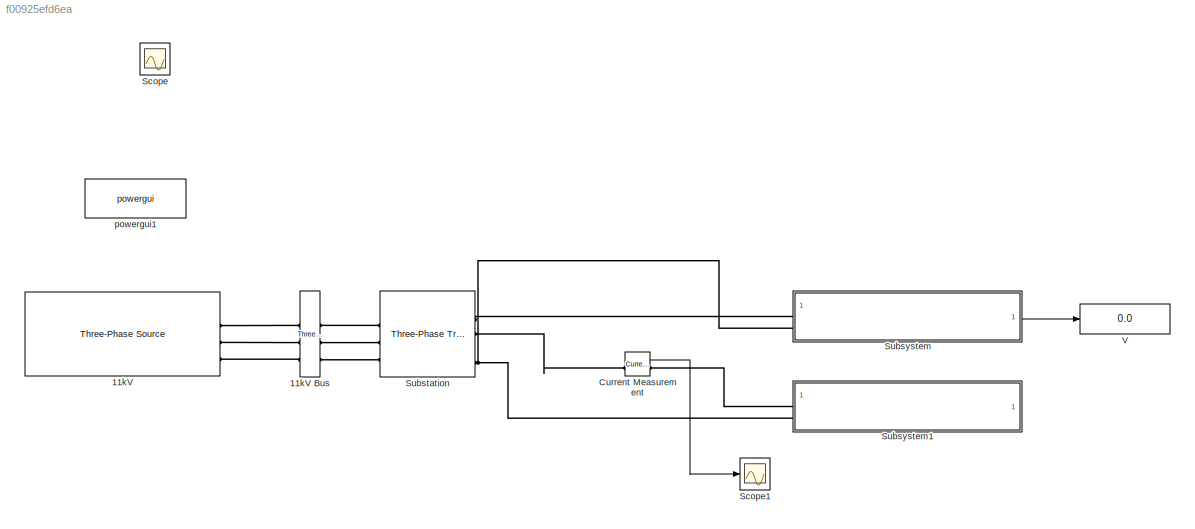
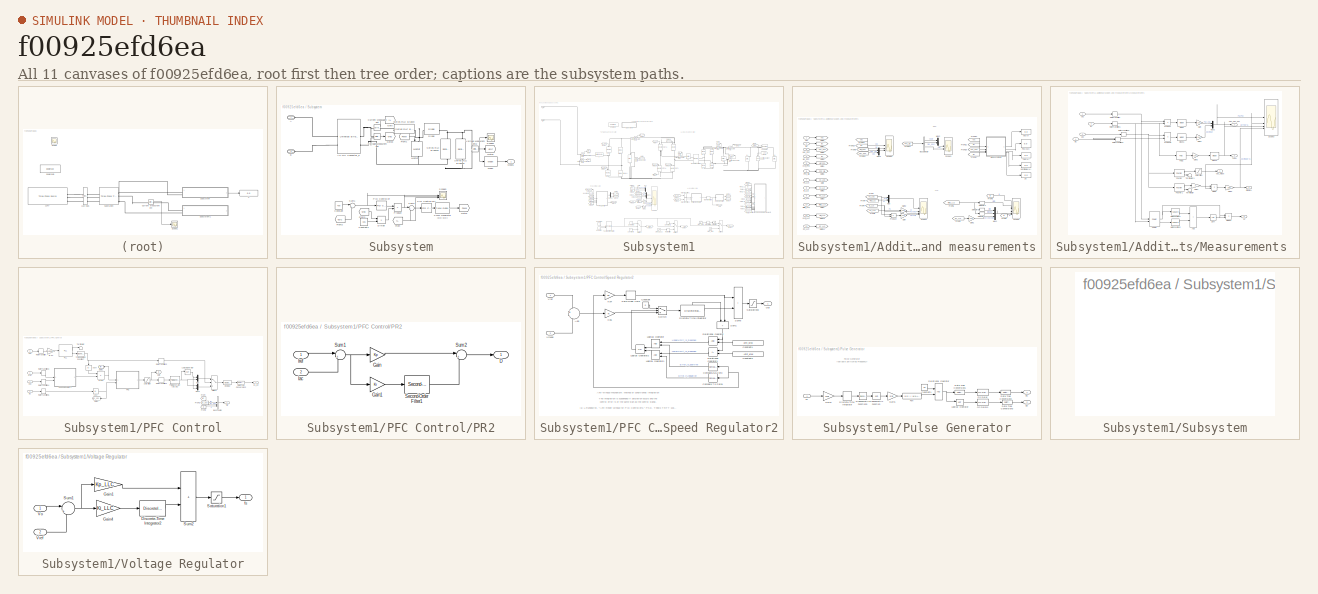
[diagram: thumbnail index - all 11 canvases of the model, root first then tree order]
MODEL slx_f00925efd6ea
KIND model
CONFIG AbsTol = auto
CONFIG EnableMultiTasking = off
CONFIG FixedStep = auto
CONFIG MaxStep = auto
CONFIG MinStep = auto
CONFIG RelTol = 1e-3
CONFIG SampleTimeConstraint = Unconstrained
CONFIG SolverName = VariableStepAuto
CONFIG StartTime = 0.0
CONFIG StopTime = 10.0
BLOCK [Reference] 11kV  REF=spsThreePhaseSourceLib/Three-Phase Source
  LibrarySourceBlock = sps_lib/Sources/Three-Phase Source
  SourceBlock = spsThreePhaseSourceLib/Three-Phase Source
  SourceType = Three-Phase Source
BLOCK [Reference] 11kV Bus  REF=spsThreePhaseVIMeasurementLib/Three-Phase
V-I Measurement
  LibrarySourceBlock = sps_lib/Sensors and Measurements/Three-Phase\nV-I Measurement
  SourceBlock = spsThreePhaseVIMeasurementLib/Three-Phase\nV-I Measurement
  SourceType = Three-Phase VI Measurement
BLOCK [Reference] Current Measurement  REF=spsCurrentMeasurementLib/Current Measurement
  LibrarySourceBlock = sps_lib/Sensors and Measurements/Current Measurement
  SourceBlock = spsCurrentMeasurementLib/Current Measurement
  SourceType = Current Measurement
  UserDataPersistent = on
BLOCK [Scope] Scope
  Floating = off
  IOType = viewer
  NumInputPorts = 1
  ScopeSpecificationString = Simulink.scopes.TimeScopeBlockCfg('CurrentConfiguration', extmgr.ConfigurationSet(extmgr.Configuration('Core','General UI',true),extmgr.Configuration('Core','Source UI',true),extmgr.Configuration('Sources','WiredSimulink',true,'DataLoggingVariableName','ScopeData1'),extmgr.Configuration('Visuals','Time Domain',true,'SerializedDisplays',{struct('MinYLimReal','-10.00000','MaxYLimReal','10.00000','YL...<+1522ch>
BLOCK [Scope] Scope1
  Floating = off
  NumInputPorts = 1
  ScopeSpecificationString = Simulink.scopes.TimeScopeBlockCfg('CurrentConfiguration', extmgr.ConfigurationSet(extmgr.Configuration('Core','General UI',true),extmgr.Configuration('Core','Source UI',true),extmgr.Configuration('Sources','WiredSimulink',true,'DataLoggingVariableName','ScopeData3'),extmgr.Configuration('Visuals','Time Domain',true,'SerializedDisplays',{struct('MinYLimReal','-1743.69071','MaxYLimReal','1470.84647'...<+1572ch>
BLOCK [Reference] Substation  REF=spsThreePhaseTransformerTwoWindingsLib/Three-Phase
Transformer
(Two Windings)
  LibrarySourceBlock = sps_lib/Power Grid Elements/Three-Phase\nTransformer\n(Two Windings)
  SourceBlock = spsThreePhaseTransformerTwoWindingsLib/Three-Phase\nTransformer\n(Two Windings)
  SourceType = Three-Phase Transformer (Two Windings)
BLOCK [SubSystem] Subsystem
BLOCK [PMIOPort] Subsystem/A
  Side = Left
BLOCK [Reference] Subsystem/AC-DC Converter_a  REF=spsUniversalBridgeLib/Universal Bridge
  SourceBlock = spsUniversalBridgeLib/Universal Bridge
  SourceType = Universal Bridge
BLOCK [PMIOPort] Subsystem/B
  Port = 2
  Side = Left
BLOCK [Constant] Subsystem/Constant
  Value = 400
BLOCK [Constant] Subsystem/Constant1
  Value = 325
BLOCK [Reference] Subsystem/Current Measurement  REF=spsCurrentMeasurementLib/Current Measurement
  SourceBlock = spsCurrentMeasurementLib/Current Measurement
  SourceType = Current Measurement
  UserDataPersistent = on
BLOCK [Reference] Subsystem/Diode  REF=spsDiodeLib/Diode
  SourceBlock = spsDiodeLib/Diode
  SourceType = Diode
BLOCK [Product] Subsystem/Divide
  Inputs = */
BLOCK [From] Subsystem/From
  GotoTag = iL
BLOCK [From] Subsystem/From1
  GotoTag = PWM
BLOCK [From] Subsystem/From2
  GotoTag = VDC
BLOCK [From] Subsystem/From3
  GotoTag = Vrec
BLOCK [Goto] Subsystem/Goto
  GotoTag = iL
BLOCK [Goto] Subsystem/Goto1
  GotoTag = PWM
BLOCK [Goto] Subsystem/Goto2
  GotoTag = VDC
BLOCK [Goto] Subsystem/Goto3
  GotoTag = Vrec
BLOCK [Reference] Subsystem/Mean  REF=spsMeanLib/Mean
  SourceBlock = spsMeanLib/Mean
  SourceType = Mean
BLOCK [Outport] Subsystem/Mean1
BLOCK [Reference] Subsystem/Mosfet  REF=spsMosfetLib/Mosfet
  NameLocation = left
  SourceBlock = spsMosfetLib/Mosfet
  SourceType = Mosfet
BLOCK [Reference] Subsystem/PID Controller  REF=slpidlib/PID Controller
  SourceBlock = slpidlib/PID Controller
  SourceType = PID 1dof
BLOCK [Reference] Subsystem/PID Controller1  REF=slpidlib/PID Controller
  SourceBlock = slpidlib/PID Controller
  SourceType = PID 1dof
BLOCK [Reference] Subsystem/PWM Generator (DC-DC)  REF=spsPWMGeneratorDCDCLib/PWM Generator
(DC-DC)
  SourceBlock = spsPWMGeneratorDCDCLib/PWM Generator\n(DC-DC)
  SourceType = PWM Generator (DC-DC)
BLOCK [Product] Subsystem/Product
BLOCK [Scope] Subsystem/Scope1
  Floating = off
  NumInputPorts = 1
  ScopeSpecificationString = Simulink.scopes.TimeScopeBlockCfg('CurrentConfiguration', extmgr.ConfigurationSet(extmgr.Configuration('Core','General UI',true),extmgr.Configuration('Core','Source UI',true),extmgr.Configuration('Sources','WiredSimulink',true,'DataLoggingVariableName','ScopeData1'),extmgr.Configuration('Visuals','Time Domain',true,'SerializedDisplays',{struct('MinYLimReal','-118.78055','MaxYLimReal','1069.02497',...<+1444ch>
BLOCK [Scope] Subsystem/Scope3
  Floating = off
  NumInputPorts = 3
  ScopeSpecificationString = Simulink.scopes.TimeScopeBlockCfg('CurrentConfiguration', extmgr.ConfigurationSet(extmgr.Configuration('Core','General UI',true),extmgr.Configuration('Core','Source UI',true),extmgr.Configuration('Sources','WiredSimulink',true,'DataLoggingVariableName','ScopeData3'),extmgr.Configuration('Visuals','Time Domain',true,'SerializedDisplays',{struct('MinYLimReal','-209.39497','MaxYLimReal','467.71055','...<+2793ch>
BLOCK [Reference] Subsystem/Series RLC Branch  REF=spsSeriesRLCBranchLib/Series RLC Branch
  SourceBlock = spsSeriesRLCBranchLib/Series RLC Branch
  SourceType = Series RLC Branch
BLOCK [Reference] Subsystem/Series RLC Branch1  REF=spsSeriesRLCBranchLib/Series RLC Branch
  NameLocation = left
  SourceBlock = spsSeriesRLCBranchLib/Series RLC Branch
  SourceType = Series RLC Branch
BLOCK [Reference] Subsystem/Series RLC Branch2  REF=spsSeriesRLCBranchLib/Series RLC Branch
  NameLocation = left
  SourceBlock = spsSeriesRLCBranchLib/Series RLC Branch
  SourceType = Series RLC Branch
BLOCK [Sum] Subsystem/Sum1
  Inputs = |+-
BLOCK [Sum] Subsystem/Sum2
  Inputs = |+-
BLOCK [Reference] Subsystem/Voltage Measurement  REF=spsVoltageMeasurementLib/Voltage Measurement
  SourceBlock = spsVoltageMeasurementLib/Voltage Measurement
  SourceType = Voltage Measurement
  UserDataPersistent = on
BLOCK [Reference] Subsystem/Voltage Measurement2  REF=spsVoltageMeasurementLib/Voltage Measurement
  SourceBlock = spsVoltageMeasurementLib/Voltage Measurement
  SourceType = Voltage Measurement
  UserDataPersistent = on
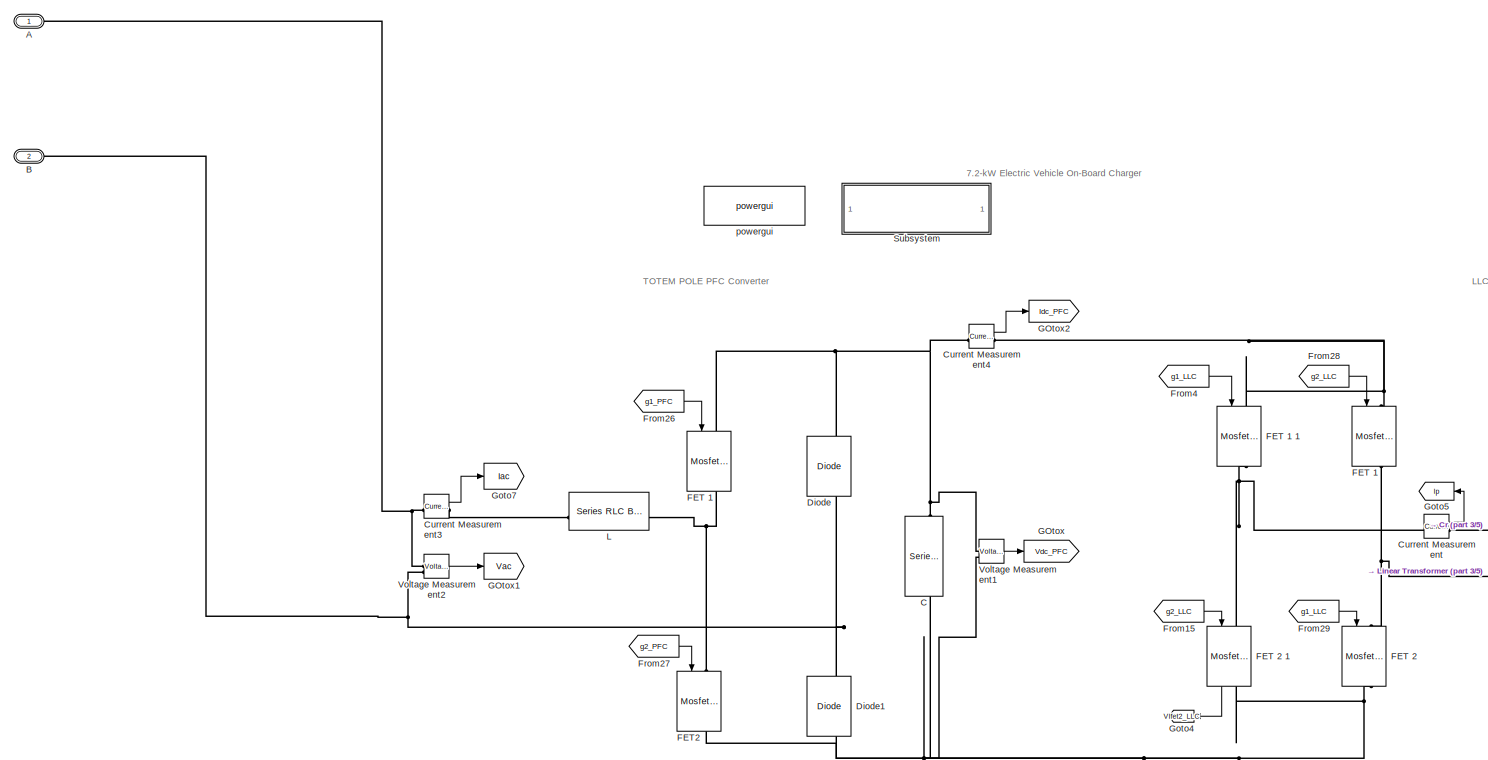
[diagram: Subsystem1 - part 1/5, top left region]
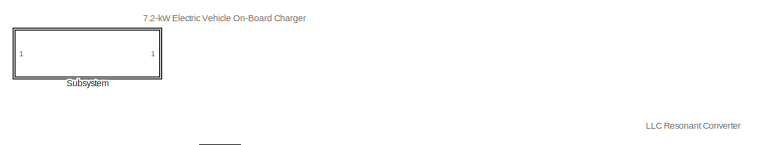
[diagram: Subsystem1 - part 2/5, top center region]
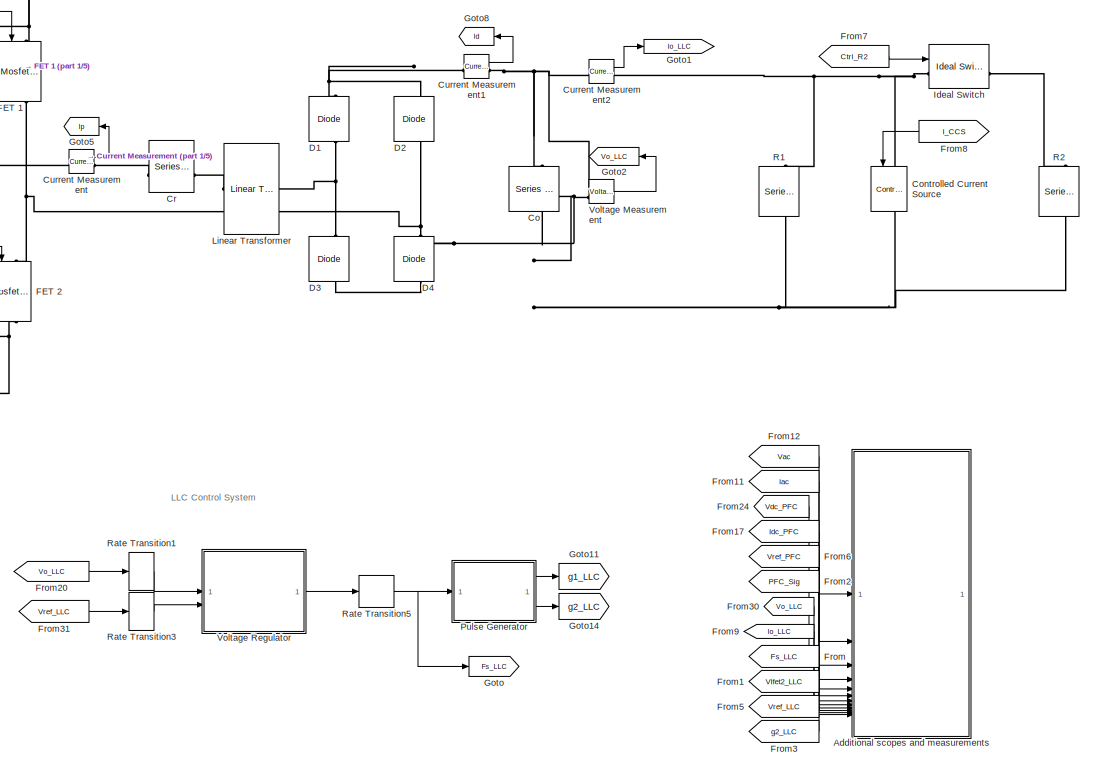
[diagram: Subsystem1 - part 3/5, middle right region]
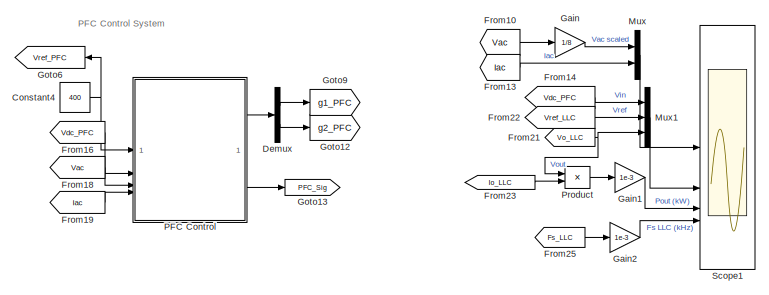
[diagram: Subsystem1 - part 4/5, bottom center region]
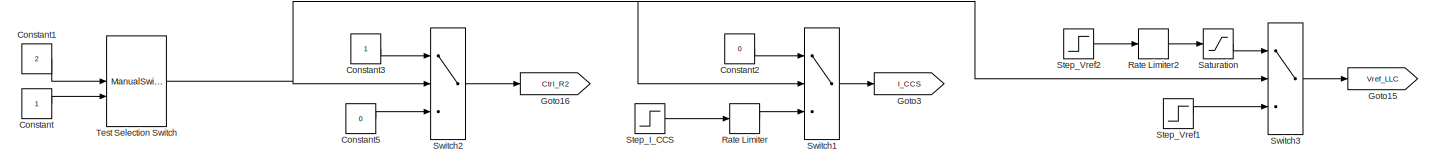
[diagram: Subsystem1 - part 5/5, bottom center region]
BLOCK [SubSystem] Subsystem1
BLOCK [PMIOPort] Subsystem1/A
  Side = Left
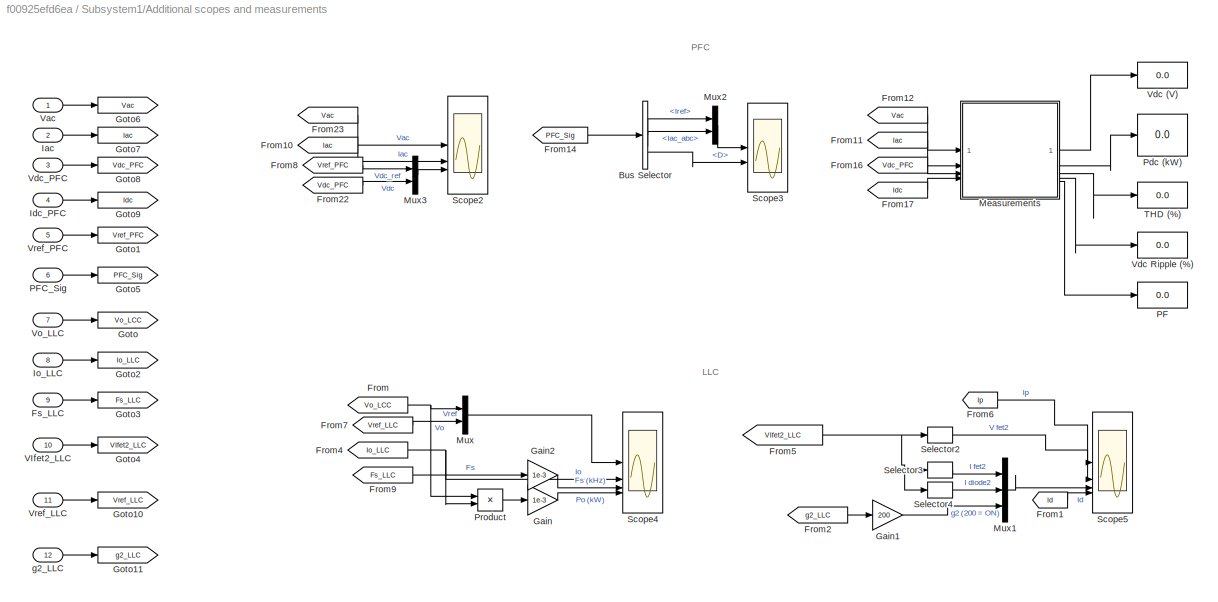
BLOCK [SubSystem] Subsystem1/Additional scopes and measurements
BLOCK [BusSelector] Subsystem1/Additional scopes and measurements/Bus Selector
  OutputSignals = Iref,Iac_abc,D
BLOCK [From] Subsystem1/Additional scopes and measurements/From
  GotoTag = Vo_LCC
BLOCK [From] Subsystem1/Additional scopes and measurements/From1
  GotoTag = Id
  TagVisibility = global
BLOCK [From] Subsystem1/Additional scopes and measurements/From10
  GotoTag = Iac
BLOCK [From] Subsystem1/Additional scopes and measurements/From11
  GotoTag = Iac
BLOCK [From] Subsystem1/Additional scopes and measurements/From12
  GotoTag = Vac
BLOCK [From] Subsystem1/Additional scopes and measurements/From14
  GotoTag = PFC_Sig
BLOCK [From] Subsystem1/Additional scopes and measurements/From16
  GotoTag = Vdc_PFC
BLOCK [From] Subsystem1/Additional scopes and measurements/From17
  GotoTag = Idc
BLOCK [From] Subsystem1/Additional scopes and measurements/From2
  GotoTag = g2_LLC
BLOCK [From] Subsystem1/Additional scopes and measurements/From22
  GotoTag = Vdc_PFC
BLOCK [From] Subsystem1/Additional scopes and measurements/From23
  GotoTag = Vac
BLOCK [From] Subsystem1/Additional scopes and measurements/From4
  GotoTag = Io_LLC
BLOCK [From] Subsystem1/Additional scopes and measurements/From5
  GotoTag = VIfet2_LLC
BLOCK [From] Subsystem1/Additional scopes and measurements/From6
  GotoTag = Ip
  TagVisibility = global
BLOCK [From] Subsystem1/Additional scopes and measurements/From7
  GotoTag = Vref_LLC
BLOCK [From] Subsystem1/Additional scopes and measurements/From8
  GotoTag = Vref_PFC
BLOCK [From] Subsystem1/Additional scopes and measurements/From9
  GotoTag = Fs_LLC
BLOCK [Inport] Subsystem1/Additional scopes and measurements/Fs_LLC
  Port = 9
BLOCK [Gain] Subsystem1/Additional scopes and measurements/Gain
  Gain = 1e-3
BLOCK [Gain] Subsystem1/Additional scopes and measurements/Gain1
  Gain = 200
BLOCK [Gain] Subsystem1/Additional scopes and measurements/Gain2
  Gain = 1e-3
BLOCK [Goto] Subsystem1/Additional scopes and measurements/Goto
  GotoTag = Vo_LCC
BLOCK [Goto] Subsystem1/Additional scopes and measurements/Goto1
  GotoTag = Vref_PFC
BLOCK [Goto] Subsystem1/Additional scopes and measurements/Goto10
  GotoTag = Vref_LLC
BLOCK [Goto] Subsystem1/Additional scopes and measurements/Goto11
  GotoTag = g2_LLC
BLOCK [Goto] Subsystem1/Additional scopes and measurements/Goto2
  GotoTag = Io_LLC
BLOCK [Goto] Subsystem1/Additional scopes and measurements/Goto3
  GotoTag = Fs_LLC
BLOCK [Goto] Subsystem1/Additional scopes and measurements/Goto4
  GotoTag = VIfet2_LLC
BLOCK [Goto] Subsystem1/Additional scopes and measurements/Goto5
  GotoTag = PFC_Sig
BLOCK [Goto] Subsystem1/Additional scopes and measurements/Goto6
  GotoTag = Vac
BLOCK [Goto] Subsystem1/Additional scopes and measurements/Goto7
  GotoTag = Iac
BLOCK [Goto] Subsystem1/Additional scopes and measurements/Goto8
  GotoTag = Vdc_PFC
BLOCK [Goto] Subsystem1/Additional scopes and measurements/Goto9
  GotoTag = Idc
BLOCK [Inport] Subsystem1/Additional scopes and measurements/Iac
  Port = 2
BLOCK [Inport] Subsystem1/Additional scopes and measurements/Idc_PFC
  Port = 4
BLOCK [Inport] Subsystem1/Additional scopes and measurements/Io_LLC
  Port = 8
BLOCK [SubSystem] Subsystem1/Additional scopes and measurements/Measurements 
BLOCK [Sum] Subsystem1/Additional scopes and measurements/Measurements /Add
  IconShape = rectangular
BLOCK [Product] Subsystem1/Additional scopes and measurements/Measurements /Divide
  Inputs = */
BLOCK [Product] Subsystem1/Additional scopes and measurements/Measurements /Divide2
  Inputs = */
BLOCK [Reference] Subsystem1/Additional scopes and measurements/Measurements /Fourier  REF=spsFourierLib/Fourier
  SourceBlock = spsFourierLib/Fourier
  SourceType = Fourier
BLOCK [Reference] Subsystem1/Additional scopes and measurements/Measurements /Fourier1  REF=spsFourierLib/Fourier
  SourceBlock = spsFourierLib/Fourier
  SourceType = Fourier
BLOCK [Gain] Subsystem1/Additional scopes and measurements/Measurements /Gain
  Gain = 1e-3
BLOCK [Gain] Subsystem1/Additional scopes and measurements/Measurements /Gain1
  Gain = 1e-3
BLOCK [Gain] Subsystem1/Additional scopes and measurements/Measurements /Gain2
  Gain = 100
BLOCK [Gain] Subsystem1/Additional scopes and measurements/Measurements /Gain3
  Gain = 100
BLOCK [Gain] Subsystem1/Additional scopes and measurements/Measurements /Gain4
  Gain = 2
BLOCK [Inport] Subsystem1/Additional scopes and measurements/Measurements /Iac
  Port = 2
BLOCK [Inport] Subsystem1/Additional scopes and measurements/Measurements /Idc
  Port = 4
BLOCK [Math] Subsystem1/Additional scopes and measurements/Measurements /Math Function1
  Operator = square
BLOCK [Math] Subsystem1/Additional scopes and measurements/Measurements /Math Function2
  Operator = square
BLOCK [Reference] Subsystem1/Additional scopes and measurements/Measurements /Mean  REF=spsMeanLib/Mean
  SourceBlock = spsMeanLib/Mean
  SourceType = Mean
BLOCK [Reference] Subsystem1/Additional scopes and measurements/Measurements /Mean1  REF=spsMeanLib/Mean
  SourceBlock = spsMeanLib/Mean
  SourceType = Mean
BLOCK [Reference] Subsystem1/Additional scopes and measurements/Measurements /Mean2  REF=spsMeanLib/Mean
  SourceBlock = spsMeanLib/Mean
  SourceType = Mean
BLOCK [Mux] Subsystem1/Additional scopes and measurements/Measurements /Mux2
  DisplayOption = bar
  Inputs = 2
BLOCK [Outport] Subsystem1/Additional scopes and measurements/Measurements /PF
  Port = 5
BLOCK [Outport] Subsystem1/Additional scopes and measurements/Measurements /Pac_Pdc_kW
  Port = 2
BLOCK [Reference] Subsystem1/Additional scopes and measurements/Measurements /Power  REF=spsPowerLib/Power
  SourceBlock = spsPowerLib/Power
  SourceType = Power
BLOCK [Product] Subsystem1/Additional scopes and measurements/Measurements /Product
BLOCK [Product] Subsystem1/Additional scopes and measurements/Measurements /Product1
BLOCK [RateTransition] Subsystem1/Additional scopes and measurements/Measurements /Rate Transition
  OutPortSampleTime = Ts_Control
BLOCK [RateTransition] Subsystem1/Additional scopes and measurements/Measurements /Rate Transition1
  OutPortSampleTime = Ts_Control
BLOCK [RateTransition] Subsystem1/Additional scopes and measurements/Measurements /Rate Transition2
  OutPortSampleTime = Ts_Control
BLOCK [RateTransition] Subsystem1/Additional scopes and measurements/Measurements /Rate Transition3
  OutPortSampleTime = Ts_Control
BLOCK [Outport] Subsystem1/Additional scopes and measurements/Measurements /Ripple%
  Port = 4
BLOCK [Saturate] Subsystem1/Additional scopes and measurements/Measurements /Saturation
  LowerLimit = eps
  UpperLimit = inf
BLOCK [Scope] Subsystem1/Additional scopes and measurements/Measurements /Scope3
  Floating = off
  NumInputPorts = 4
  ScopeSpecificationString = Simulink.scopes.TimeScopeBlockCfg('CurrentConfiguration', extmgr.ConfigurationSet(extmgr.Configuration('Core','General UI',true),extmgr.Configuration('Core','Source UI',true),extmgr.Configuration('Sources','WiredSimulink',true,'DataLoggingVariableName','ScopeData1'),extmgr.Configuration('Visuals','Time Domain',true,'SerializedDisplays',{struct('MinYLimReal','-1.32447','MaxYLimReal','11.92024','YLa...<+3480ch>
BLOCK [Sqrt] Subsystem1/Additional scopes and measurements/Measurements /Sqrt
BLOCK [Outport] Subsystem1/Additional scopes and measurements/Measurements /THD%
  Port = 3
BLOCK [Reference] Subsystem1/Additional scopes and measurements/Measurements /THD2  REF=spsTHDLib/THD
  SourceBlock = spsTHDLib/THD
  SourceType = THD
BLOCK [Terminator] Subsystem1/Additional scopes and measurements/Measurements /Terminator
BLOCK [Terminator] Subsystem1/Additional scopes and measurements/Measurements /Terminator1
BLOCK [Inport] Subsystem1/Additional scopes and measurements/Measurements /Vac
BLOCK [Inport] Subsystem1/Additional scopes and measurements/Measurements /Vdc
  Port = 3
BLOCK [Outport] Subsystem1/Additional scopes and measurements/Measurements /Vdc_mean
BLOCK [Mux] Subsystem1/Additional scopes and measurements/Mux
  DisplayOption = bar
  Inputs = 2
BLOCK [Mux] Subsystem1/Additional scopes and measurements/Mux1
  DisplayOption = bar
  Inputs = 3
BLOCK [Mux] Subsystem1/Additional scopes and measurements/Mux2
  DisplayOption = bar
  Inputs = 2
BLOCK [Mux] Subsystem1/Additional scopes and measurements/Mux3
  DisplayOption = bar
  Inputs = 2
BLOCK [Display] Subsystem1/Additional scopes and measurements/PF
  Decimation = 100
  Format = bank
BLOCK [Inport] Subsystem1/Additional scopes and measurements/PFC_Sig
  Port = 6
BLOCK [Display] Subsystem1/Additional scopes and measurements/Pdc (kW) 
  Decimation = 100
  Format = bank
BLOCK [Product] Subsystem1/Additional scopes and measurements/Product
BLOCK [Scope] Subsystem1/Additional scopes and measurements/Scope2
  Floating = off
  NumInputPorts = 3
  ScopeSpecificationString = Simulink.scopes.TimeScopeBlockCfg('CurrentConfiguration', extmgr.ConfigurationSet(extmgr.Configuration('Core','General UI',true),extmgr.Configuration('Core','Source UI',true),extmgr.Configuration('Sources','WiredSimulink',true,'DataLoggingVariableName','ScopeData1'),extmgr.Configuration('Visuals','Time Domain',true,'SerializedDisplays',{struct('MinYLimReal','-424.26407','MaxYLimReal','424.26407','...<+2773ch>
BLOCK [Scope] Subsystem1/Additional scopes and measurements/Scope3
  Floating = off
  NumInputPorts = 2
  ScopeSpecificationString = Simulink.scopes.TimeScopeBlockCfg('CurrentConfiguration', extmgr.ConfigurationSet(extmgr.Configuration('Core','General UI',true),extmgr.Configuration('Core','Source UI',true),extmgr.Configuration('Sources','WiredSimulink',true,'DataLoggingVariableName','ScopeData2'),extmgr.Configuration('Visuals','Time Domain',true,'SerializedDisplays',{struct('MinYLimReal','-9.06391','MaxYLimReal','81.57518','YLa...<+2057ch>
BLOCK [Scope] Subsystem1/Additional scopes and measurements/Scope4
  Floating = off
  NumInputPorts = 4
  ScopeSpecificationString = Simulink.scopes.TimeScopeBlockCfg('CurrentConfiguration', extmgr.ConfigurationSet(extmgr.Configuration('Core','General UI',true),extmgr.Configuration('Core','Source UI',true),extmgr.Configuration('Sources','WiredSimulink',true,'DataLoggingVariableName','ScopeData2','DataLoggingDecimation','10'),extmgr.Configuration('Visuals','Time Domain',true,'SerializedDisplays',{struct('MinYLimReal','338.12925'...<+3546ch>
BLOCK [Scope] Subsystem1/Additional scopes and measurements/Scope5
  Floating = off
  NumInputPorts = 4
  ScopeSpecificationString = Simulink.scopes.TimeScopeBlockCfg('CurrentConfiguration', extmgr.ConfigurationSet(extmgr.Configuration('Core','General UI',true),extmgr.Configuration('Core','Source UI',true),extmgr.Configuration('Sources','WiredSimulink',true,'DataLoggingVariableName','ScopeData1','DataLoggingDecimation','1','DataLoggingSaveFormat','StructureWithTime'),extmgr.Configuration('Visuals','Time Domain',true,'Serialized...<+3663ch>
BLOCK [Selector] Subsystem1/Additional scopes and measurements/Selector2
  IndexOptions = Index vector (dialog)
  Indices = 2
  InputPortWidth = 3
  OutputSizes = 1
BLOCK [Selector] Subsystem1/Additional scopes and measurements/Selector3
  IndexOptions = Index vector (dialog)
  Indices = 1
  InputPortWidth = 3
  OutputSizes = 1
BLOCK [Selector] Subsystem1/Additional scopes and measurements/Selector4
  IndexOptions = Index vector (dialog)
  Indices = 3
  InputPortWidth = 3
  OutputSizes = 1
BLOCK [Display] Subsystem1/Additional scopes and measurements/THD (%) 
  Decimation = 100
  Format = bank
BLOCK [Inport] Subsystem1/Additional scopes and measurements/VIfet2_LLC
  Port = 10
BLOCK [Inport] Subsystem1/Additional scopes and measurements/Vac
BLOCK [Display] Subsystem1/Additional scopes and measurements/Vdc (V) 
  Decimation = 100
  Format = bank
BLOCK [Display] Subsystem1/Additional scopes and measurements/Vdc Ripple (%)
  Decimation = 100
  Format = bank
BLOCK [Inport] Subsystem1/Additional scopes and measurements/Vdc_PFC
  Port = 3
BLOCK [Inport] Subsystem1/Additional scopes and measurements/Vo_LLC
  Port = 7
BLOCK [Inport] Subsystem1/Additional scopes and measurements/Vref_LLC
  Port = 11
BLOCK [Inport] Subsystem1/Additional scopes and measurements/Vref_PFC
  Port = 5
BLOCK [Inport] Subsystem1/Additional scopes and measurements/g2_LLC
  Port = 12
BLOCK [PMIOPort] Subsystem1/B
  Port = 2
  Side = Left
BLOCK [Reference] Subsystem1/C  REF=spsSeriesRLCBranchLib/Series RLC Branch
  NameLocation = left
  SourceBlock = spsSeriesRLCBranchLib/Series RLC Branch
  SourceType = Series RLC Branch
BLOCK [Reference] Subsystem1/Co  REF=spsSeriesRLCBranchLib/Series RLC Branch
  NameLocation = left
  SourceBlock = spsSeriesRLCBranchLib/Series RLC Branch
  SourceType = Series RLC Branch
BLOCK [Constant] Subsystem1/Constant
BLOCK [Constant] Subsystem1/Constant1
  Value = 2
BLOCK [Constant] Subsystem1/Constant2
  Value = 0
BLOCK [Constant] Subsystem1/Constant3
BLOCK [Constant] Subsystem1/Constant4
  Value = 400
BLOCK [Constant] Subsystem1/Constant5
  Value = 0
BLOCK [Reference] Subsystem1/Controlled Current Source  REF=spsControlledCurrentSourceLib/Controlled Current Source
  NameLocation = right
  SourceBlock = spsControlledCurrentSourceLib/Controlled Current Source
  SourceType = Controlled Current Source
BLOCK [Reference] Subsystem1/Cr  REF=spsSeriesRLCBranchLib/Series RLC Branch
  NameLocation = top
  SourceBlock = spsSeriesRLCBranchLib/Series RLC Branch
  SourceType = Series RLC Branch
BLOCK [Reference] Subsystem1/Current Measurement  REF=spsCurrentMeasurementLib/Current Measurement
  SourceBlock = spsCurrentMeasurementLib/Current Measurement
  SourceType = Current Measurement
  UserDataPersistent = on
BLOCK [Reference] Subsystem1/Current Measurement1  REF=spsCurrentMeasurementLib/Current Measurement
  SourceBlock = spsCurrentMeasurementLib/Current Measurement
  SourceType = Current Measurement
  UserDataPersistent = on
BLOCK [Reference] Subsystem1/Current Measurement2  REF=spsCurrentMeasurementLib/Current Measurement
  SourceBlock = spsCurrentMeasurementLib/Current Measurement
  SourceType = Current Measurement
  UserDataPersistent = on
BLOCK [Reference] Subsystem1/Current Measurement3  REF=spsCurrentMeasurementLib/Current Measurement
  SourceBlock = spsCurrentMeasurementLib/Current Measurement
  SourceType = Current Measurement
  UserDataPersistent = on
BLOCK [Reference] Subsystem1/Current Measurement4  REF=spsCurrentMeasurementLib/Current Measurement
  SourceBlock = spsCurrentMeasurementLib/Current Measurement
  SourceType = Current Measurement
  UserDataPersistent = on
BLOCK [Reference] Subsystem1/D1  REF=spsDiodeLib/Diode
  NameLocation = left
  SourceBlock = spsDiodeLib/Diode
  SourceType = Diode
BLOCK [Reference] Subsystem1/D2  REF=spsDiodeLib/Diode
  NameLocation = left
  SourceBlock = spsDiodeLib/Diode
  SourceType = Diode
BLOCK [Reference] Subsystem1/D3  REF=spsDiodeLib/Diode
  NameLocation = left
  SourceBlock = spsDiodeLib/Diode
  SourceType = Diode
BLOCK [Reference] Subsystem1/D4  REF=spsDiodeLib/Diode
  NameLocation = left
  SourceBlock = spsDiodeLib/Diode
  SourceType = Diode
BLOCK [Demux] Subsystem1/Demux
  Outputs = 2
BLOCK [Reference] Subsystem1/Diode  REF=spsDiodeLib/Diode
  NameLocation = right
  SourceBlock = spsDiodeLib/Diode
  SourceType = Diode
BLOCK [Reference] Subsystem1/Diode1  REF=spsDiodeLib/Diode
  NameLocation = right
  SourceBlock = spsDiodeLib/Diode
  SourceType = Diode
BLOCK [Reference] Subsystem1/FET 1  REF=MyLibrary/Mosfet (custom)
  NameLocation = left
  SourceBlock = MyLibrary/Mosfet (custom)
  SourceType = Custom FET
BLOCK [Reference] Subsystem1/FET 1   REF=MyLibrary/Mosfet (custom)
  NameLocation = left
  SourceBlock = MyLibrary/Mosfet (custom)
  SourceType = Custom FET
BLOCK [Reference] Subsystem1/FET 1 1  REF=MyLibrary/Mosfet (custom)
  NameLocation = left
  SourceBlock = MyLibrary/Mosfet (custom)
  SourceType = Custom FET
BLOCK [Reference] Subsystem1/FET 2   REF=MyLibrary/Mosfet (custom)
  NameLocation = left
  SourceBlock = MyLibrary/Mosfet (custom)
  SourceType = Custom FET
BLOCK [Reference] Subsystem1/FET 2 1  REF=MyLibrary/Mosfet (custom)
  NameLocation = left
  SourceBlock = MyLibrary/Mosfet (custom)
  SourceType = Custom FET
BLOCK [Reference] Subsystem1/FET2  REF=MyLibrary/Mosfet (custom)
  NameLocation = left
  SourceBlock = MyLibrary/Mosfet (custom)
  SourceType = Custom FET
BLOCK [From] Subsystem1/From
  GotoTag = Fs_LLC
BLOCK [From] Subsystem1/From1
  GotoTag = VIfet2_LLC
BLOCK [From] Subsystem1/From10
  GotoTag = Vac
BLOCK [From] Subsystem1/From11
  GotoTag = Iac
BLOCK [From] Subsystem1/From12
  GotoTag = Vac
BLOCK [From] Subsystem1/From13
  GotoTag = Iac
BLOCK [From] Subsystem1/From14
  GotoTag = Vdc_PFC
BLOCK [From] Subsystem1/From15
  GotoTag = g2_LLC
  TagVisibility = global
BLOCK [From] Subsystem1/From16
  GotoTag = Vdc_PFC
BLOCK [From] Subsystem1/From17
  GotoTag = Idc_PFC
BLOCK [From] Subsystem1/From18
  GotoTag = Vac
BLOCK [From] Subsystem1/From19
  GotoTag = Iac
BLOCK [From] Subsystem1/From2
  GotoTag = PFC_Sig
BLOCK [From] Subsystem1/From20
  GotoTag = Vo_LLC
  TagVisibility = global
BLOCK [From] Subsystem1/From21
  GotoTag = Vo_LLC
  TagVisibility = global
BLOCK [From] Subsystem1/From22
  GotoTag = Vref_LLC
BLOCK [From] Subsystem1/From23
  GotoTag = Io_LLC
BLOCK [From] Subsystem1/From24
  GotoTag = Vdc_PFC
BLOCK [From] Subsystem1/From25
  GotoTag = Fs_LLC
BLOCK [From] Subsystem1/From26
  GotoTag = g1_PFC
BLOCK [From] Subsystem1/From27
  GotoTag = g2_PFC
BLOCK [From] Subsystem1/From28
  GotoTag = g2_LLC
  TagVisibility = global
BLOCK [From] Subsystem1/From29
  GotoTag = g1_LLC
  TagVisibility = global
BLOCK [From] Subsystem1/From3
  GotoTag = g2_LLC
  TagVisibility = global
BLOCK [From] Subsystem1/From30
  GotoTag = Vo_LLC
  TagVisibility = global
BLOCK [From] Subsystem1/From31
  GotoTag = Vref_LLC
BLOCK [From] Subsystem1/From4
  GotoTag = g1_LLC
  TagVisibility = global
BLOCK [From] Subsystem1/From5
  GotoTag = Vref_LLC
BLOCK [From] Subsystem1/From6
  GotoTag = Vref_PFC
BLOCK [From] Subsystem1/From7
  GotoTag = Ctrl_R2
BLOCK [From] Subsystem1/From8
  GotoTag = I_CCS
BLOCK [From] Subsystem1/From9
  GotoTag = Io_LLC
BLOCK [Goto] Subsystem1/GOtox
  GotoTag = Vdc_PFC
BLOCK [Goto] Subsystem1/GOtox1
  GotoTag = Vac
BLOCK [Goto] Subsystem1/GOtox2
  GotoTag = Idc_PFC
BLOCK [Gain] Subsystem1/Gain
  Gain = 1/8
BLOCK [Gain] Subsystem1/Gain1
  Gain = 1e-3
BLOCK [Gain] Subsystem1/Gain2
  Gain = 1e-3
BLOCK [Goto] Subsystem1/Goto
  GotoTag = Fs_LLC
BLOCK [Goto] Subsystem1/Goto1
  GotoTag = Io_LLC
BLOCK [Goto] Subsystem1/Goto11
  GotoTag = g1_LLC
  TagVisibility = global
BLOCK [Goto] Subsystem1/Goto12
  GotoTag = g2_PFC
BLOCK [Goto] Subsystem1/Goto13
  GotoTag = PFC_Sig
BLOCK [Goto] Subsystem1/Goto14
  GotoTag = g2_LLC
  TagVisibility = global
BLOCK [Goto] Subsystem1/Goto15
  GotoTag = Vref_LLC
BLOCK [Goto] Subsystem1/Goto16
  GotoTag = Ctrl_R2
BLOCK [Goto] Subsystem1/Goto2
  GotoTag = Vo_LLC
  TagVisibility = global
BLOCK [Goto] Subsystem1/Goto3
  GotoTag = I_CCS
BLOCK [Goto] Subsystem1/Goto4
  GotoTag = VIfet2_LLC
BLOCK [Goto] Subsystem1/Goto5
  GotoTag = Ip
  TagVisibility = global
BLOCK [Goto] Subsystem1/Goto6
  GotoTag = Vref_PFC
BLOCK [Goto] Subsystem1/Goto7
  GotoTag = Iac
BLOCK [Goto] Subsystem1/Goto8
  GotoTag = Id
  TagVisibility = global
BLOCK [Goto] Subsystem1/Goto9
  GotoTag = g1_PFC
BLOCK [Reference] Subsystem1/Ideal Switch  REF=spsIdealSwitchLib/Ideal Switch
  SourceBlock = spsIdealSwitchLib/Ideal Switch
  SourceType = Ideal Switch
BLOCK [Reference] Subsystem1/L  REF=spsSeriesRLCBranchLib/Series RLC Branch
  SourceBlock = spsSeriesRLCBranchLib/Series RLC Branch
  SourceType = Series RLC Branch
BLOCK [Reference] Subsystem1/Linear Transformer  REF=spsLinearTransformerLib/Linear Transformer
  SourceBlock = spsLinearTransformerLib/Linear Transformer
  SourceType = Linear Transformer
BLOCK [Mux] Subsystem1/Mux
  DisplayOption = bar
  Inputs = 2
BLOCK [Mux] Subsystem1/Mux1
  DisplayOption = bar
  Inputs = 3
BLOCK [SubSystem] Subsystem1/PFC Control
BLOCK [Abs] Subsystem1/PFC Control/AbsI
  SaturateOnIntegerOverflow = off
BLOCK [Abs] Subsystem1/PFC Control/AbsV
  NameLocation = right
  SaturateOnIntegerOverflow = off
BLOCK [BusCreator] Subsystem1/PFC Control/Bus Creator
  DisplayOption = bar
  InheritFromInputs = on
  Inputs = 3
BLOCK [DataTypeConversion] Subsystem1/PFC Control/Data Type Conversion2
  OutDataTypeStr = double
  RndMeth = Floor
  SaturateOnIntegerOverflow = off
BLOCK [From] Subsystem1/PFC Control/From
  GotoTag = Iref
BLOCK [From] Subsystem1/PFC Control/From1
  GotoTag = Iac_abs
BLOCK [From] Subsystem1/PFC Control/From2
  GotoTag = D
BLOCK [Goto] Subsystem1/PFC Control/Goto
  GotoTag = D
BLOCK [Goto] Subsystem1/PFC Control/Goto1
  GotoTag = Iref
BLOCK [Goto] Subsystem1/PFC Control/Goto2
  GotoTag = Iac_abs
BLOCK [Inport] Subsystem1/PFC Control/Iac
  Port = 4
BLOCK [Logic] Subsystem1/PFC Control/Logical Operator
  AllPortsSameDT = off
  Operator = NOT
  OutDataTypeStr = float('double')
BLOCK [Mux] Subsystem1/PFC Control/Mux
  DisplayOption = bar
  Inputs = 2
BLOCK [Mux] Subsystem1/PFC Control/Mux2
  DisplayOption = bar
  Inputs = 2
BLOCK [Reference] Subsystem1/PFC Control/On Delay  REF=spsOnDelayLib/On Delay
  NameLocation = top
  SourceBlock = spsOnDelayLib/On Delay
  SourceType = On/Off Delay
BLOCK [Reference] Subsystem1/PFC Control/PLL  REF=spsPLLLib/PLL
  SourceBlock = spsPLLLib/PLL
  SourceType = PLL
BLOCK [SubSystem] Subsystem1/PFC Control/PR2
BLOCK [Outport] Subsystem1/PFC Control/PR2/D
BLOCK [Gain] Subsystem1/PFC Control/PR2/Gain
  Gain = Kp
BLOCK [Gain] Subsystem1/PFC Control/PR2/Gain1
  Gain = Kr
BLOCK [Inport] Subsystem1/PFC Control/PR2/Iac
  Port = 2
BLOCK [Inport] Subsystem1/PFC Control/PR2/Iref
BLOCK [Reference] Subsystem1/PFC Control/PR2/Second-Order Filter1  REF=spsSecondOrderFilterLib/Second-Order
Filter
  SourceBlock = spsSecondOrderFilterLib/Second-Order\nFilter
  SourceType = Second-Order Filter
BLOCK [Sum] Subsystem1/PFC Control/PR2/Sum1
  Inputs = |+-
BLOCK [Sum] Subsystem1/PFC Control/PR2/Sum2
  Inputs = |++
BLOCK [Reference] Subsystem1/PFC Control/PWM Generator (DC-DC)  REF=spsPWMGeneratorDCDCLib/PWM Generator
(DC-DC)
  SourceBlock = spsPWMGeneratorDCDCLib/PWM Generator\n(DC-DC)
  SourceType = PWM Generator (DC-DC)
BLOCK [Product] Subsystem1/PFC Control/Prod1
BLOCK [RateTransition] Subsystem1/PFC Control/Rate Transition
  OutPortSampleTime = Ts_Control
BLOCK [RateTransition] Subsystem1/PFC Control/Rate Transition1
  OutPortSampleTime = Ts_Power
BLOCK [RateTransition] Subsystem1/PFC Control/Rate Transition2
  OutPortSampleTime = Ts_Power
BLOCK [RateTransition] Subsystem1/PFC Control/Rate Transition3
  OutPortSampleTime = Ts_Control
BLOCK [RateTransition] Subsystem1/PFC Control/Rate Transition4
  OutPortSampleTime = Ts_Control
BLOCK [RateTransition] Subsystem1/PFC Control/Rate Transition5
  OutPortSampleTime = Ts_Control
BLOCK [Saturate] Subsystem1/PFC Control/Saturation
  LowerLimit = 0
  UpperLimit = 1
BLOCK [Outport] Subsystem1/PFC Control/Sig
  Port = 2
BLOCK [SubSystem] Subsystem1/PFC Control/Speed Regulator2
  DialogController = POWERSYS.PowerSysDialog
BLOCK [Sum] Subsystem1/PFC Control/Speed Regulator2/Add
  Inputs = +|-
  NameLocation = top
BLOCK [Reference] Subsystem1/PFC Control/Speed Regulator2/Compare To Zero  REF=simulink/Logic and Bit
Operations/Compare
To Zero
  SourceBlock = simulink/Logic and Bit\nOperations/Compare\nTo Zero
  SourceType = Compare To Zero
BLOCK [Reference] Subsystem1/PFC Control/Speed Regulator2/Compare To Zero1  REF=simulink/Logic and Bit
Operations/Compare
To Zero
  SourceBlock = simulink/Logic and Bit\nOperations/Compare\nTo Zero
  SourceType = Compare To Zero
BLOCK [Constant] Subsystem1/PFC Control/Speed Regulator2/Constant
  Value = 0
BLOCK [Constant] Subsystem1/PFC Control/Speed Regulator2/Constant1
  Value = Limit_wreg
BLOCK [Constant] Subsystem1/PFC Control/Speed Regulator2/Constant2
  Value = -Limit_wreg
BLOCK [DiscreteIntegrator] Subsystem1/PFC Control/Speed Regulator2/Discrete-Time Integrator
  ICPrevOutput = DiscIntNeverNeededParam
  ICPrevScaledInput = DiscIntNeverNeededParam
  InitialCondition = Init
  IntegratorMethod = Integration: Trapezoidal
  LimitOutput = on
  LowerSaturationLimit = -Limit_wreg
  SampleTime = Ts
  ShowStatePort = on
  UpperSaturationLimit = Limit_wreg
BLOCK [Gain] Subsystem1/PFC Control/Speed Regulator2/Kp4
  Gain = Kp
  OutDataTypeStr = Inherit: Same as input
  ParamDataTypeStr = Inherit: Same as input
  SampleTime = Ts
  SaturateOnIntegerOverflow = on
BLOCK [Gain] Subsystem1/PFC Control/Speed Regulator2/Kp5
  Gain = Ki
  OutDataTypeStr = Inherit: Same as input
  ParamDataTypeStr = Inherit: Same as input
  SampleTime = Ts
  SaturateOnIntegerOverflow = on
BLOCK [Logic] Subsystem1/PFC Control/Speed Regulator2/Logical Operator
  AllPortsSameDT = off
  OutDataTypeStr = boolean
BLOCK [Logic] Subsystem1/PFC Control/Speed Regulator2/Logical Operator1
  AllPortsSameDT = off
  OutDataTypeStr = boolean
BLOCK [Logic] Subsystem1/PFC Control/Speed Regulator2/Logical Operator2
  AllPortsSameDT = off
  Operator = OR
  OutDataTypeStr = boolean
BLOCK [Outport] Subsystem1/PFC Control/Speed Regulator2/Out
  InitialOutput = 0
  SampleTime = Ts
  VectorParamsAs1DForOutWhenUnconnected = off
BLOCK [RelationalOperator] Subsystem1/PFC Control/Speed Regulator2/Relational Operator
  InputSameDT = off
  OutDataTypeStr = boolean
BLOCK [RelationalOperator] Subsystem1/PFC Control/Speed Regulator2/Relational Operator1
  InputSameDT = off
  Operator = <=
  OutDataTypeStr = boolean
BLOCK [Saturate] Subsystem1/PFC Control/Speed Regulator2/Saturation2
  LowerLimit = -Limit_wreg
  NameLocation = top
  SampleTime = Ts
  UpperLimit = Limit_wreg
BLOCK [Sum] Subsystem1/PFC Control/Speed Regulator2/Sum1
  IconShape = rectangular
  InputSameDT = on
  NameLocation = left
  OutDataTypeStr = Inherit: Same as first input
  SampleTime = Ts
  SaturateOnIntegerOverflow = on
BLOCK [Sum] Subsystem1/PFC Control/Speed Regulator2/Sum6
  IconShape = rectangular
  InputSameDT = on
  OutDataTypeStr = Inherit: Same as first input
  SampleTime = Ts
  SaturateOnIntegerOverflow = on
BLOCK [Switch] Subsystem1/PFC Control/Speed Regulator2/Switch
  Criteria = u2 > Threshold
  InputSameDT = off
  SaturateOnIntegerOverflow = off
BLOCK [Inport] Subsystem1/PFC Control/Speed Regulator2/Vmeas
  Port = 2
  PortDimensions = 1
BLOCK [Inport] Subsystem1/PFC Control/Speed Regulator2/Vref
  PortDimensions = 1
BLOCK [ZeroOrderHold] Subsystem1/PFC Control/Speed Regulator2/Zero-Order Hold
  SampleTime = Ts
BLOCK [Switch] Subsystem1/PFC Control/Switch1
  InputSameDT = off
  SaturateOnIntegerOverflow = off
BLOCK [Terminator] Subsystem1/PFC Control/Terminator
BLOCK [Trigonometry] Subsystem1/PFC Control/Trigonometric Function7
  NameLocation = top
BLOCK [Inport] Subsystem1/PFC Control/Vac
  Port = 3
BLOCK [Inport] Subsystem1/PFC Control/Vdc
  Port = 2
BLOCK [Inport] Subsystem1/PFC Control/Vref
BLOCK [Outport] Subsystem1/PFC Control/g1_g2
  PortDimensions = 2
BLOCK [Gain] Subsystem1/PFC Control/to-pu
  Gain = 1/(Vnom_ac*sqrt(2))
BLOCK [Product] Subsystem1/Product
BLOCK [SubSystem] Subsystem1/Pulse Generator
BLOCK [Constant] Subsystem1/Pulse Generator/Constant1
  Value = 0.5
BLOCK [DataTypeConversion] Subsystem1/Pulse Generator/Data Type Conversion1
  OutDataTypeStr = double
  RndMeth = Floor
  SaturateOnIntegerOverflow = off
BLOCK [DataTypeConversion] Subsystem1/Pulse Generator/Data Type Conversion2
  OutDataTypeStr = double
  RndMeth = Floor
  SaturateOnIntegerOverflow = off
BLOCK [DataTypeConversion] Subsystem1/Pulse Generator/Data Type Conversion3
  OutDataTypeStr = double
  RndMeth = Floor
  SaturateOnIntegerOverflow = off
BLOCK [DiscreteIntegrator] Subsystem1/Pulse Generator/Discrete-Time Integrator
  ICPrevOutput = DiscIntNeverNeededParam
  ICPrevScaledInput = DiscIntNeverNeededParam
  InitialConditionSetting = Auto
  SampleTime = Ts_Power
BLOCK [Fcn] Subsystem1/Pulse Generator/Fcn
  Expr = 0.5 * ( u(1)+1 )
BLOCK [Inport] Subsystem1/Pulse Generator/Fs
BLOCK [Gain] Subsystem1/Pulse Generator/Gain1
  Gain = 2/pi
  OutDataTypeStr = Inherit: Same as input
  ParamDataTypeStr = Inherit: Same as input
  SaturateOnIntegerOverflow = on
BLOCK [Gain] Subsystem1/Pulse Generator/Gain2
  Gain = 2*pi
  OutDataTypeStr = Inherit: Same as input
  ParamDataTypeStr = Inherit: Same as input
  SaturateOnIntegerOverflow = on
BLOCK [Logic] Subsystem1/Pulse Generator/Logical Operator
  AllPortsSameDT = off
  Operator = NOT
  OutDataTypeStr = float('double')
BLOCK [Reference] Subsystem1/Pulse Generator/On Delay  REF=spsOnDelayLib/On Delay
  NameLocation = top
  SourceBlock = spsOnDelayLib/On Delay
  SourceType = On/Off Delay
BLOCK [Reference] Subsystem1/Pulse Generator/On Delay1  REF=spsOnDelayLib/On Delay
  NameLocation = top
  SourceBlock = spsOnDelayLib/On Delay
  SourceType = On/Off Delay
BLOCK [RelationalOperator] Subsystem1/Pulse Generator/Relational Operator
  InputSameDT = off
  OutDataTypeStr = boolean
BLOCK [Trigonometry] Subsystem1/Pulse Generator/Trigonometric Function
  Operator = asin
BLOCK [Trigonometry] Subsystem1/Pulse Generator/Trigonometric Function3
BLOCK [Outport] Subsystem1/Pulse Generator/g1
  VectorParamsAs1DForOutWhenUnconnected = off
BLOCK [Outport] Subsystem1/Pulse Generator/g2
  Port = 2
  VectorParamsAs1DForOutWhenUnconnected = off
BLOCK [Reference] Subsystem1/R1  REF=spsSeriesRLCBranchLib/Series RLC Branch
  NameLocation = right
  SourceBlock = spsSeriesRLCBranchLib/Series RLC Branch
  SourceType = Series RLC Branch
BLOCK [Reference] Subsystem1/R2  REF=spsSeriesRLCBranchLib/Series RLC Branch
  NameLocation = right
  SourceBlock = spsSeriesRLCBranchLib/Series RLC Branch
  SourceType = Series RLC Branch
BLOCK [RateLimiter] Subsystem1/Rate Limiter
  FallingSlewLimit = -200
  InitialCondition = 3
  RisingSlewLimit = 200
  SampleTimeMode = inherited
BLOCK [RateLimiter] Subsystem1/Rate Limiter2
  FallingSlewLimit = -200*5
  InitialCondition = 250
  RisingSlewLimit = 200*5
  SampleTimeMode = inherited
BLOCK [RateTransition] Subsystem1/Rate Transition1
  NameLocation = right
  OutPortSampleTime = Ts_Control
BLOCK [RateTransition] Subsystem1/Rate Transition3
  NameLocation = right
  OutPortSampleTime = Ts_Control
BLOCK [RateTransition] Subsystem1/Rate Transition5
  InitialCondition = 200e3
  OutPortSampleTime = Ts_Power
BLOCK [Saturate] Subsystem1/Saturation
  LowerLimit = Vref_LCC_min
  UpperLimit = Vref_LCC_max
BLOCK [Scope] Subsystem1/Scope1
  Floating = off
  NumInputPorts = 4
  ScopeSpecificationString = Simulink.scopes.TimeScopeBlockCfg('CurrentConfiguration', extmgr.ConfigurationSet(extmgr.Configuration('Core','General UI',true),extmgr.Configuration('Core','Source UI',true),extmgr.Configuration('Sources','WiredSimulink',true,'DataLoggingVariableName','ScopeData2'),extmgr.Configuration('Visuals','Time Domain',true,'SerializedDisplays',{struct('MinYLimReal','-1822.91381','MaxYLimReal','1391.62337'...<+3892ch>
BLOCK [Step] Subsystem1/Step_I_CCS
  After = 18
  Before = 3
  SampleTime = Ts_Power
  Time = 0.2
BLOCK [Step] Subsystem1/Step_Vref1
  After = 400
  Before = 350
  SampleTime = Ts_Power
  Time = 0.1
BLOCK [Step] Subsystem1/Step_Vref2
  After = 450
  Before = 250
  SampleTime = Ts_Power
  Time = 0.1
BLOCK [SubSystem] Subsystem1/Subsystem
  OpenFcn = edit('OBC_v1_data');
BLOCK [Switch] Subsystem1/Switch1
  Criteria = u2 > Threshold
  InputSameDT = off
  SaturateOnIntegerOverflow = off
  Threshold = 1.5
BLOCK [Switch] Subsystem1/Switch2
  Criteria = u2 > Threshold
  InputSameDT = off
  SaturateOnIntegerOverflow = off
  Threshold = 1.5
BLOCK [Switch] Subsystem1/Switch3
  Criteria = u2 > Threshold
  InputSameDT = off
  SaturateOnIntegerOverflow = off
  Threshold = 1.5
BLOCK [ManualSwitch] Subsystem1/Test Selection Switch
  CurrentSetting = 0
BLOCK [Reference] Subsystem1/Voltage Measurement  REF=spsVoltageMeasurementLib/Voltage Measurement
  SourceBlock = spsVoltageMeasurementLib/Voltage Measurement
  SourceType = Voltage Measurement
  UserDataPersistent = on
BLOCK [Reference] Subsystem1/Voltage Measurement1  REF=spsVoltageMeasurementLib/Voltage Measurement
  SourceBlock = spsVoltageMeasurementLib/Voltage Measurement
  SourceType = Voltage Measurement
  UserDataPersistent = on
BLOCK [Reference] Subsystem1/Voltage Measurement2  REF=spsVoltageMeasurementLib/Voltage Measurement
  SourceBlock = spsVoltageMeasurementLib/Voltage Measurement
  SourceType = Voltage Measurement
  UserDataPersistent = on
BLOCK [SubSystem] Subsystem1/Voltage Regulator
BLOCK [DiscreteIntegrator] Subsystem1/Voltage Regulator/Discrete-Time Integrator2
  ICPrevOutput = DiscIntNeverNeededParam
  ICPrevScaledInput = DiscIntNeverNeededParam
  InitialCondition = fs_LCC_min
  InitialConditionSetting = Auto
  LimitOutput = on
  LowerSaturationLimit = fs_LCC_min
  SampleTime = Ts_Control
  UpperSaturationLimit = fs_LCC_max
BLOCK [Gain] Subsystem1/Voltage Regulator/Gain1
  Gain = Kp_LLC
  OutDataTypeStr = Inherit: Same as input
  ParamDataTypeStr = Inherit: Same as input
  SaturateOnIntegerOverflow = on
BLOCK [Gain] Subsystem1/Voltage Regulator/Gain4
  Gain = Ki_LLC
  OutDataTypeStr = Inherit: Same as input
  ParamDataTypeStr = Inherit: Same as input
  SaturateOnIntegerOverflow = on
BLOCK [Saturate] Subsystem1/Voltage Regulator/Saturation1
  LowerLimit = fs_LCC_min
  UpperLimit = fs_LCC_max
BLOCK [Sum] Subsystem1/Voltage Regulator/Sum1
  InputSameDT = on
  Inputs = |+-
  NameLocation = top
  OutDataTypeStr = Inherit: Same as first input
  SaturateOnIntegerOverflow = on
BLOCK [Sum] Subsystem1/Voltage Regulator/Sum2
  IconShape = rectangular
  InputSameDT = on
  OutDataTypeStr = Inherit: Same as first input
  SaturateOnIntegerOverflow = on
BLOCK [Inport] Subsystem1/Voltage Regulator/Vo
  NameLocation = top
BLOCK [Inport] Subsystem1/Voltage Regulator/Vref
  Port = 2
BLOCK [Outport] Subsystem1/Voltage Regulator/fs
  VectorParamsAs1DForOutWhenUnconnected = off
BLOCK [Reference] Subsystem1/powergui  REF=spspowerguiLib/powergui
  Priority = 1
  SourceBlock = spspowerguiLib/powergui
  SourceType = PSB option menu block
BLOCK [Display] V
  Decimation = 1
BLOCK [Reference] powergui1  REF=spspowerguiLib/powergui
  Priority = 1
  SourceBlock = spspowerguiLib/powergui
  SourceType = PSB option menu block
ANNOTATION Subsystem1: TOTEM POLE PFC Converter
ANNOTATION Subsystem1: LLC Control System
ANNOTATION Subsystem1: PFC Control System
ANNOTATION Subsystem1: LLC Resonant Converter
ANNOTATION Subsystem1: 7.2-kW Electric Vehicle On-Board Charger
ANNOTATION Subsystem1/Additional scopes and measurements: LLC
ANNOTATION Subsystem1/Additional scopes and measurements: PFC
ANNOTATION Subsystem1/PFC Control/Speed Regulator2: Anti-windup mechanism: Method of conditionnal integration The integration is suspended if saturation occurs and the control error is of the same sign as the control signal. [1] L.Rundqwist, "Anti-Reset Windup for PID Controllers," Ph.D. Thesis TRFT-1033, Departement of Automatic Control, Lund Institute of Technology, Lund, Sweeden, 1991.
ANNOTATION Subsystem1/Pulse Generator: Pulse Generator (Variable Switching Frequency)
LINE Current Measurement:1 -> Scope1:1
LINE Subsystem/Constant1:1 -> Subsystem/Divide:2
LINE Subsystem/Constant:1 -> Subsystem/Sum1:1
LINE Subsystem/Current Measurement:1 -> Subsystem/Goto:1
LINE Subsystem/Divide:1 -> Subsystem/Product:2
LINE Subsystem/From1:1 -> Subsystem/Mosfet:1
LINE Subsystem/From2:1 -> Subsystem/Sum1:2
LINE Subsystem/From3:1 -> Subsystem/Divide:1
NET Subsystem/From:1 -> Subsystem/Scope3:3, Subsystem/Sum2:2
LINE Subsystem/Mean:1 -> Subsystem/Mean1:1
LINE Subsystem/PID Controller1:1 -> Subsystem/PWM Generator (DC-DC):1
LINE Subsystem/PID Controller:1 -> Subsystem/Product:1
LINE Subsystem/PWM Generator (DC-DC):1 -> Subsystem/Goto1:1
NET Subsystem/Product:1 -> Subsystem/Scope3:2, Subsystem/Sum2:1
NET Subsystem/Sum1:1 -> Subsystem/PID Controller:1, Subsystem/Scope3:1
LINE Subsystem/Sum2:1 -> Subsystem/PID Controller1:1
NET Subsystem/Voltage Measurement2:1 -> Subsystem/Goto2:1, Subsystem/Mean:1, Subsystem/Scope1:1
LINE Subsystem/Voltage Measurement:1 -> Subsystem/Goto3:1
LINE Subsystem1/Additional scopes and measurements/Bus Selector:1 -> Subsystem1/Additional scopes and measurements/Mux2:1
LINE Subsystem1/Additional scopes and measurements/Bus Selector:2 -> Subsystem1/Additional scopes and measurements/Mux2:2
LINE Subsystem1/Additional scopes and measurements/Bus Selector:3 -> Subsystem1/Additional scopes and measurements/Scope3:2
LINE Subsystem1/Additional scopes and measurements/From10:1 -> Subsystem1/Additional scopes and measurements/Scope2:2
LINE Subsystem1/Additional scopes and measurements/From11:1 -> Subsystem1/Additional scopes and measurements/Measurements :2
LINE Subsystem1/Additional scopes and measurements/From12:1 -> Subsystem1/Additional scopes and measurements/Measurements :1
LINE Subsystem1/Additional scopes and measurements/From14:1 -> Subsystem1/Additional scopes and measurements/Bus Selector:1
LINE Subsystem1/Additional scopes and measurements/From16:1 -> Subsystem1/Additional scopes and measurements/Measurements :3
LINE Subsystem1/Additional scopes and measurements/From17:1 -> Subsystem1/Additional scopes and measurements/Measurements :4
LINE Subsystem1/Additional scopes and measurements/From1:1 -> Subsystem1/Additional scopes and measurements/Scope5:4
LINE Subsystem1/Additional scopes and measurements/From22:1 -> Subsystem1/Additional scopes and measurements/Mux3:2
LINE Subsystem1/Additional scopes and measurements/From23:1 -> Subsystem1/Additional scopes and measurements/Scope2:1
LINE Subsystem1/Additional scopes and measurements/From2:1 -> Subsystem1/Additional scopes and measurements/Gain1:1
NET Subsystem1/Additional scopes and measurements/From4:1 -> Subsystem1/Additional scopes and measurements/Product:2, Subsystem1/Additional scopes and measurements/Scope4:2
NET Subsystem1/Additional scopes and measurements/From5:1 -> Subsystem1/Additional scopes and measurements/Selector2:1, Subsystem1/Additional scopes and measurements/Selector3:1, Subsystem1/Additional scopes and measurements/Selector4:1
LINE Subsystem1/Additional scopes and measurements/From6:1 -> Subsystem1/Additional scopes and measurements/Scope5:1
LINE Subsystem1/Additional scopes and measurements/From7:1 -> Subsystem1/Additional scopes and measurements/Mux:2
LINE Subsystem1/Additional scopes and measurements/From8:1 -> Subsystem1/Additional scopes and measurements/Mux3:1
LINE Subsystem1/Additional scopes and measurements/From9:1 -> Subsystem1/Additional scopes and measurements/Gain2:1
NET Subsystem1/Additional scopes and measurements/From:1 -> Subsystem1/Additional scopes and measurements/Mux:1, Subsystem1/Additional scopes and measurements/Product:1
LINE Subsystem1/Additional scopes and measurements/Fs_LLC:1 -> Subsystem1/Additional scopes and measurements/Goto3:1
LINE Subsystem1/Additional scopes and measurements/Gain1:1 -> Subsystem1/Additional scopes and measurements/Mux1:3
LINE Subsystem1/Additional scopes and measurements/Gain2:1 -> Subsystem1/Additional scopes and measurements/Scope4:3
LINE Subsystem1/Additional scopes and measurements/Gain:1 -> Subsystem1/Additional scopes and measurements/Scope4:4
LINE Subsystem1/Additional scopes and measurements/Iac:1 -> Subsystem1/Additional scopes and measurements/Goto7:1
LINE Subsystem1/Additional scopes and measurements/Idc_PFC:1 -> Subsystem1/Additional scopes and measurements/Goto9:1
LINE Subsystem1/Additional scopes and measurements/Io_LLC:1 -> Subsystem1/Additional scopes and measurements/Goto2:1
LINE Subsystem1/Additional scopes and measurements/Measurements /Add:1 -> Subsystem1/Additional scopes and measurements/Measurements /Sqrt:1
LINE Subsystem1/Additional scopes and measurements/Measurements /Divide2:1 -> Subsystem1/Additional scopes and measurements/Measurements /PF:1
LINE Subsystem1/Additional scopes and measurements/Measurements /Divide:1 -> Subsystem1/Additional scopes and measurements/Measurements /Gain3:1
LINE Subsystem1/Additional scopes and measurements/Measurements /Fourier1:1 -> Subsystem1/Additional scopes and measurements/Measurements /Gain4:1
LINE Subsystem1/Additional scopes and measurements/Measurements /Fourier1:2 -> Subsystem1/Additional scopes and measurements/Measurements /Terminator:1
LINE Subsystem1/Additional scopes and measurements/Measurements /Fourier:1 -> Subsystem1/Additional scopes and measurements/Measurements /Saturation:1
LINE Subsystem1/Additional scopes and measurements/Measurements /Fourier:2 -> Subsystem1/Additional scopes and measurements/Measurements /Terminator1:1
LINE Subsystem1/Additional scopes and measurements/Measurements /Gain1:1 -> Subsystem1/Additional scopes and measurements/Measurements /Mux2:2
LINE Subsystem1/Additional scopes and measurements/Measurements /Gain2:1 -> Subsystem1/Additional scopes and measurements/Measurements /Mean2:1
NET Subsystem1/Additional scopes and measurements/Measurements /Gain3:1 -> Subsystem1/Additional scopes and measurements/Measurements /Ripple%:1, Subsystem1/Additional scopes and measurements/Measurements /Scope3:4
LINE Subsystem1/Additional scopes and measurements/Measurements /Gain4:1 -> Subsystem1/Additional scopes and measurements/Measurements /Divide:1
LINE Subsystem1/Additional scopes and measurements/Measurements /Gain:1 -> Subsystem1/Additional scopes and measurements/Measurements /Mux2:1
LINE Subsystem1/Additional scopes and measurements/Measurements /Iac:1 -> Subsystem1/Additional scopes and measurements/Measurements /Rate Transition1:1
LINE Subsystem1/Additional scopes and measurements/Measurements /Idc:1 -> Subsystem1/Additional scopes and measurements/Measurements /Rate Transition3:1
LINE Subsystem1/Additional scopes and measurements/Measurements /Math Function1:1 -> Subsystem1/Additional scopes and measurements/Measurements /Add:1
LINE Subsystem1/Additional scopes and measurements/Measurements /Math Function2:1 -> Subsystem1/Additional scopes and measurements/Measurements /Add:2
LINE Subsystem1/Additional scopes and measurements/Measurements /Mean1:1 -> Subsystem1/Additional scopes and measurements/Measurements /Gain1:1
NET Subsystem1/Additional scopes and measurements/Measurements /Mean2:1 -> Subsystem1/Additional scopes and measurements/Measurements /Scope3:3, Subsystem1/Additional scopes and measurements/Measurements /THD%:1
LINE Subsystem1/Additional scopes and measurements/Measurements /Mean:1 -> Subsystem1/Additional scopes and measurements/Measurements /Gain:1
NET Subsystem1/Additional scopes and measurements/Measurements /Mux2:1 -> Subsystem1/Additional scopes and measurements/Measurements /Pac_Pdc_kW:1, Subsystem1/Additional scopes and measurements/Measurements /Scope3:1
NET Subsystem1/Additional scopes and measurements/Measurements /Power:1 -> Subsystem1/Additional scopes and measurements/Measurements /Divide2:1, Subsystem1/Additional scopes and measurements/Measurements /Math Function1:1
LINE Subsystem1/Additional scopes and measurements/Measurements /Power:2 -> Subsystem1/Additional scopes and measurements/Measurements /Math Function2:1
LINE Subsystem1/Additional scopes and measurements/Measurements /Product1:1 -> Subsystem1/Additional scopes and measurements/Measurements /Mean1:1
LINE Subsystem1/Additional scopes and measurements/Measurements /Product:1 -> Subsystem1/Additional scopes and measurements/Measurements /Mean:1
NET Subsystem1/Additional scopes and measurements/Measurements /Rate Transition1:1 -> Subsystem1/Additional scopes and measurements/Measurements /Power:2, Subsystem1/Additional scopes and measurements/Measurements /Product:2, Subsystem1/Additional scopes and measurements/Measurements /THD2:1
NET Subsystem1/Additional scopes and measurements/Measurements /Rate Transition2:1 -> Subsystem1/Additional scopes and measurements/Measurements /Fourier1:1, Subsystem1/Additional scopes and measurements/Measurements /Fourier:1, Subsystem1/Additional scopes and measurements/Measurements /Product1:1
LINE Subsystem1/Additional scopes and measurements/Measurements /Rate Transition3:1 -> Subsystem1/Additional scopes and measurements/Measurements /Product1:2
NET Subsystem1/Additional scopes and measurements/Measurements /Rate Transition:1 -> Subsystem1/Additional scopes and measurements/Measurements /Power:1, Subsystem1/Additional scopes and measurements/Measurements /Product:1
NET Subsystem1/Additional scopes and measurements/Measurements /Saturation:1 -> Subsystem1/Additional scopes and measurements/Measurements /Divide:2, Subsystem1/Additional scopes and measurements/Measurements /Scope3:2, Subsystem1/Additional scopes and measurements/Measurements /Vdc_mean:1
LINE Subsystem1/Additional scopes and measurements/Measurements /Sqrt:1 -> Subsystem1/Additional scopes and measurements/Measurements /Divide2:2
LINE Subsystem1/Additional scopes and measurements/Measurements /THD2:1 -> Subsystem1/Additional scopes and measurements/Measurements /Gain2:1
LINE Subsystem1/Additional scopes and measurements/Measurements /Vac:1 -> Subsystem1/Additional scopes and measurements/Measurements /Rate Transition:1
LINE Subsystem1/Additional scopes and measurements/Measurements /Vdc:1 -> Subsystem1/Additional scopes and measurements/Measurements /Rate Transition2:1
LINE Subsystem1/Additional scopes and measurements/Measurements :1 -> Subsystem1/Additional scopes and measurements/Vdc (V) :1
LINE Subsystem1/Additional scopes and measurements/Measurements :2 -> Subsystem1/Additional scopes and measurements/Pdc (kW) :1
LINE Subsystem1/Additional scopes and measurements/Measurements :3 -> Subsystem1/Additional scopes and measurements/THD (%) :1
LINE Subsystem1/Additional scopes and measurements/Measurements :4 -> Subsystem1/Additional scopes and measurements/Vdc Ripple (%):1
LINE Subsystem1/Additional scopes and measurements/Measurements :5 -> Subsystem1/Additional scopes and measurements/PF:1
LINE Subsystem1/Additional scopes and measurements/Mux1:1 -> Subsystem1/Additional scopes and measurements/Scope5:3
LINE Subsystem1/Additional scopes and measurements/Mux2:1 -> Subsystem1/Additional scopes and measurements/Scope3:1
LINE Subsystem1/Additional scopes and measurements/Mux3:1 -> Subsystem1/Additional scopes and measurements/Scope2:3
LINE Subsystem1/Additional scopes and measurements/Mux:1 -> Subsystem1/Additional scopes and measurements/Scope4:1
LINE Subsystem1/Additional scopes and measurements/PFC_Sig:1 -> Subsystem1/Additional scopes and measurements/Goto5:1
LINE Subsystem1/Additional scopes and measurements/Product:1 -> Subsystem1/Additional scopes and measurements/Gain:1
LINE Subsystem1/Additional scopes and measurements/Selector2:1 -> Subsystem1/Additional scopes and measurements/Scope5:2
LINE Subsystem1/Additional scopes and measurements/Selector3:1 -> Subsystem1/Additional scopes and measurements/Mux1:1
LINE Subsystem1/Additional scopes and measurements/Selector4:1 -> Subsystem1/Additional scopes and measurements/Mux1:2
LINE Subsystem1/Additional scopes and measurements/VIfet2_LLC:1 -> Subsystem1/Additional scopes and measurements/Goto4:1
LINE Subsystem1/Additional scopes and measurements/Vac:1 -> Subsystem1/Additional scopes and measurements/Goto6:1
LINE Subsystem1/Additional scopes and measurements/Vdc_PFC:1 -> Subsystem1/Additional scopes and measurements/Goto8:1
LINE Subsystem1/Additional scopes and measurements/Vo_LLC:1 -> Subsystem1/Additional scopes and measurements/Goto:1
LINE Subsystem1/Additional scopes and measurements/Vref_LLC:1 -> Subsystem1/Additional scopes and measurements/Goto10:1
LINE Subsystem1/Additional scopes and measurements/Vref_PFC:1 -> Subsystem1/Additional scopes and measurements/Goto1:1
LINE Subsystem1/Additional scopes and measurements/g2_LLC:1 -> Subsystem1/Additional scopes and measurements/Goto11:1
LINE Subsystem1/Constant1:1 -> Subsystem1/Test Selection Switch:1
LINE Subsystem1/Constant2:1 -> Subsystem1/Switch1:1
LINE Subsystem1/Constant3:1 -> Subsystem1/Switch2:1
NET Subsystem1/Constant4:1 -> Subsystem1/Goto6:1, Subsystem1/PFC Control:1
LINE Subsystem1/Constant5:1 -> Subsystem1/Switch2:3
LINE Subsystem1/Constant:1 -> Subsystem1/Test Selection Switch:2
LINE Subsystem1/Current Measurement1:1 -> Subsystem1/Goto8:1
LINE Subsystem1/Current Measurement2:1 -> Subsystem1/Goto1:1
LINE Subsystem1/Current Measurement3:1 -> Subsystem1/Goto7:1
LINE Subsystem1/Current Measurement4:1 -> Subsystem1/GOtox2:1
LINE Subsystem1/Current Measurement:1 -> Subsystem1/Goto5:1
LINE Subsystem1/Demux:1 -> Subsystem1/Goto9:1
LINE Subsystem1/Demux:2 -> Subsystem1/Goto12:1
LINE Subsystem1/FET 2 1:1 -> Subsystem1/Goto4:1
LINE Subsystem1/From10:1 -> Subsystem1/Gain:1
LINE Subsystem1/From11:1 -> Subsystem1/Additional scopes and measurements:2
LINE Subsystem1/From12:1 -> Subsystem1/Additional scopes and measurements:1
LINE Subsystem1/From13:1 -> Subsystem1/Mux:2
LINE Subsystem1/From14:1 -> Subsystem1/Mux1:1
LINE Subsystem1/From15:1 -> Subsystem1/FET 2 1:1
LINE Subsystem1/From16:1 -> Subsystem1/PFC Control:2
LINE Subsystem1/From17:1 -> Subsystem1/Additional scopes and measurements:4
LINE Subsystem1/From18:1 -> Subsystem1/PFC Control:3
LINE Subsystem1/From19:1 -> Subsystem1/PFC Control:4
LINE Subsystem1/From1:1 -> Subsystem1/Additional scopes and measurements:10
LINE Subsystem1/From20:1 -> Subsystem1/Rate Transition1:1
NET Subsystem1/From21:1 -> Subsystem1/Mux1:3, Subsystem1/Product:1
LINE Subsystem1/From22:1 -> Subsystem1/Mux1:2
LINE Subsystem1/From23:1 -> Subsystem1/Product:2
LINE Subsystem1/From24:1 -> Subsystem1/Additional scopes and measurements:3
LINE Subsystem1/From25:1 -> Subsystem1/Gain2:1
LINE Subsystem1/From26:1 -> Subsystem1/FET 1:1
LINE Subsystem1/From27:1 -> Subsystem1/FET2:1
LINE Subsystem1/From28:1 -> Subsystem1/FET 1 :1
LINE Subsystem1/From29:1 -> Subsystem1/FET 2 :1
LINE Subsystem1/From2:1 -> Subsystem1/Additional scopes and measurements:6
LINE Subsystem1/From30:1 -> Subsystem1/Additional scopes and measurements:7
LINE Subsystem1/From31:1 -> Subsystem1/Rate Transition3:1
LINE Subsystem1/From3:1 -> Subsystem1/Additional scopes and measurements:12
LINE Subsystem1/From4:1 -> Subsystem1/FET 1 1:1
LINE Subsystem1/From5:1 -> Subsystem1/Additional scopes and measurements:11
LINE Subsystem1/From6:1 -> Subsystem1/Additional scopes and measurements:5
LINE Subsystem1/From7:1 -> Subsystem1/Ideal Switch:1
LINE Subsystem1/From8:1 -> Subsystem1/Controlled Current Source:1
LINE Subsystem1/From9:1 -> Subsystem1/Additional scopes and measurements:8
LINE Subsystem1/From:1 -> Subsystem1/Additional scopes and measurements:9
LINE Subsystem1/Gain1:1 -> Subsystem1/Scope1:3
LINE Subsystem1/Gain2:1 -> Subsystem1/Scope1:4
LINE Subsystem1/Gain:1 -> Subsystem1/Mux:1
LINE Subsystem1/Mux1:1 -> Subsystem1/Scope1:2
LINE Subsystem1/Mux:1 -> Subsystem1/Scope1:1
NET Subsystem1/PFC Control/AbsI:1 -> Subsystem1/PFC Control/Goto2:1, Subsystem1/PFC Control/PR2:2
LINE Subsystem1/PFC Control/AbsV:1 -> Subsystem1/PFC Control/Prod1:1
LINE Subsystem1/PFC Control/Bus Creator:1 -> Subsystem1/PFC Control/Sig:1
LINE Subsystem1/PFC Control/Data Type Conversion2:1 -> Subsystem1/PFC Control/g1_g2:1
LINE Subsystem1/PFC Control/From1:1 -> Subsystem1/PFC Control/Bus Creator:2
LINE Subsystem1/PFC Control/From2:1 -> Subsystem1/PFC Control/Bus Creator:3
LINE Subsystem1/PFC Control/From:1 -> Subsystem1/PFC Control/Bus Creator:1
LINE Subsystem1/PFC Control/Iac:1 -> Subsystem1/PFC Control/Rate Transition5:1
NET Subsystem1/PFC Control/Logical Operator:1 -> Subsystem1/PFC Control/Mux2:2, Subsystem1/PFC Control/Mux:1
LINE Subsystem1/PFC Control/Mux2:1 -> Subsystem1/PFC Control/Switch1:3
LINE Subsystem1/PFC Control/Mux:1 -> Subsystem1/PFC Control/Switch1:1
LINE Subsystem1/PFC Control/On Delay:1 -> Subsystem1/PFC Control/Data Type Conversion2:1
LINE Subsystem1/PFC Control/PLL:1 -> Subsystem1/PFC Control/Terminator:1
LINE Subsystem1/PFC Control/PLL:2 -> Subsystem1/PFC Control/Trigonometric Function7:1
LINE Subsystem1/PFC Control/PR2/Gain1:1 -> Subsystem1/PFC Control/PR2/Second-Order Filter1:1
LINE Subsystem1/PFC Control/PR2/Gain:1 -> Subsystem1/PFC Control/PR2/Sum2:1
LINE Subsystem1/PFC Control/PR2/Iac:1 -> Subsystem1/PFC Control/PR2/Sum1:2
LINE Subsystem1/PFC Control/PR2/Iref:1 -> Subsystem1/PFC Control/PR2/Sum1:1
LINE Subsystem1/PFC Control/PR2/Second-Order Filter1:1 -> Subsystem1/PFC Control/PR2/Sum2:2
NET Subsystem1/PFC Control/PR2/Sum1:1 -> Subsystem1/PFC Control/PR2/Gain1:1, Subsystem1/PFC Control/PR2/Gain:1
LINE Subsystem1/PFC Control/PR2/Sum2:1 -> Subsystem1/PFC Control/PR2/D:1
LINE Subsystem1/PFC Control/PR2:1 -> Subsystem1/PFC Control/Saturation:1
NET Subsystem1/PFC Control/PWM Generator (DC-DC):1 -> Subsystem1/PFC Control/Logical Operator:1, Subsystem1/PFC Control/Mux2:1, Subsystem1/PFC Control/Mux:2
NET Subsystem1/PFC Control/Prod1:1 -> Subsystem1/PFC Control/Goto1:1, Subsystem1/PFC Control/PR2:1
LINE Subsystem1/PFC Control/Rate Transition1:1 -> Subsystem1/PFC Control/PWM Generator (DC-DC):1
LINE Subsystem1/PFC Control/Rate Transition2:1 -> Subsystem1/PFC Control/Switch1:2
LINE Subsystem1/PFC Control/Rate Transition3:1 -> Subsystem1/PFC Control/Speed Regulator2:1
LINE Subsystem1/PFC Control/Rate Transition4:1 -> Subsystem1/PFC Control/Speed Regulator2:2
LINE Subsystem1/PFC Control/Rate Transition5:1 -> Subsystem1/PFC Control/AbsI:1
LINE Subsystem1/PFC Control/Rate Transition:1 -> Subsystem1/PFC Control/to-pu:1
NET Subsystem1/PFC Control/Saturation:1 -> Subsystem1/PFC Control/Goto:1, Subsystem1/PFC Control/Rate Transition1:1
LINE Subsystem1/PFC Control/Speed Regulator2:1 -> Subsystem1/PFC Control/Prod1:2
LINE Subsystem1/PFC Control/Switch1:1 -> Subsystem1/PFC Control/On Delay:1
NET Subsystem1/PFC Control/Trigonometric Function7:1 -> Subsystem1/PFC Control/AbsV:1, Subsystem1/PFC Control/Rate Transition2:1
LINE Subsystem1/PFC Control/Vac:1 -> Subsystem1/PFC Control/Rate Transition:1
LINE Subsystem1/PFC Control/Vdc:1 -> Subsystem1/PFC Control/Rate Transition4:1
LINE Subsystem1/PFC Control/Vref:1 -> Subsystem1/PFC Control/Rate Transition3:1
LINE Subsystem1/PFC Control/to-pu:1 -> Subsystem1/PFC Control/PLL:1
LINE Subsystem1/PFC Control:1 -> Subsystem1/Demux:1
LINE Subsystem1/PFC Control:2 -> Subsystem1/Goto13:1
LINE Subsystem1/Product:1 -> Subsystem1/Gain1:1
LINE Subsystem1/Pulse Generator/Constant1:1 -> Subsystem1/Pulse Generator/Relational Operator:1
LINE Subsystem1/Pulse Generator/Data Type Conversion1:1 -> Subsystem1/Pulse Generator/On Delay:1
LINE Subsystem1/Pulse Generator/Data Type Conversion2:1 -> Subsystem1/Pulse Generator/g1:1
LINE Subsystem1/Pulse Generator/Data Type Conversion3:1 -> Subsystem1/Pulse Generator/g2:1
LINE Subsystem1/Pulse Generator/Discrete-Time Integrator:1 -> Subsystem1/Pulse Generator/Trigonometric Function3:1
LINE Subsystem1/Pulse Generator/Fcn:1 -> Subsystem1/Pulse Generator/Relational Operator:2
LINE Subsystem1/Pulse Generator/Fs:1 -> Subsystem1/Pulse Generator/Gain2:1
LINE Subsystem1/Pulse Generator/Gain1:1 -> Subsystem1/Pulse Generator/Fcn:1
LINE Subsystem1/Pulse Generator/Gain2:1 -> Subsystem1/Pulse Generator/Discrete-Time Integrator:1
LINE Subsystem1/Pulse Generator/Logical Operator:1 -> Subsystem1/Pulse Generator/On Delay1:1
LINE Subsystem1/Pulse Generator/On Delay1:1 -> Subsystem1/Pulse Generator/Data Type Conversion3:1
LINE Subsystem1/Pulse Generator/On Delay:1 -> Subsystem1/Pulse Generator/Data Type Conversion2:1
NET Subsystem1/Pulse Generator/Relational Operator:1 -> Subsystem1/Pulse Generator/Data Type Conversion1:1, Subsystem1/Pulse Generator/Logical Operator:1
LINE Subsystem1/Pulse Generator/Trigonometric Function3:1 -> Subsystem1/Pulse Generator/Trigonometric Function:1
LINE Subsystem1/Pulse Generator/Trigonometric Function:1 -> Subsystem1/Pulse Generator/Gain1:1
LINE Subsystem1/Pulse Generator:1 -> Subsystem1/Goto11:1
LINE Subsystem1/Pulse Generator:2 -> Subsystem1/Goto14:1
LINE Subsystem1/Rate Limiter2:1 -> Subsystem1/Saturation:1
LINE Subsystem1/Rate Limiter:1 -> Subsystem1/Switch1:3
LINE Subsystem1/Rate Transition1:1 -> Subsystem1/Voltage Regulator:1
LINE Subsystem1/Rate Transition3:1 -> Subsystem1/Voltage Regulator:2
NET Subsystem1/Rate Transition5:1 -> Subsystem1/Goto:1, Subsystem1/Pulse Generator:1
LINE Subsystem1/Saturation:1 -> Subsystem1/Switch3:1
LINE Subsystem1/Step_I_CCS:1 -> Subsystem1/Rate Limiter:1
LINE Subsystem1/Step_Vref1:1 -> Subsystem1/Switch3:3
LINE Subsystem1/Step_Vref2:1 -> Subsystem1/Rate Limiter2:1
LINE Subsystem1/Switch1:1 -> Subsystem1/Goto3:1
LINE Subsystem1/Switch2:1 -> Subsystem1/Goto16:1
LINE Subsystem1/Switch3:1 -> Subsystem1/Goto15:1
NET Subsystem1/Test Selection Switch:1 -> Subsystem1/Switch1:2, Subsystem1/Switch2:2, Subsystem1/Switch3:2
LINE Subsystem1/Voltage Measurement1:1 -> Subsystem1/GOtox:1
LINE Subsystem1/Voltage Measurement2:1 -> Subsystem1/GOtox1:1
LINE Subsystem1/Voltage Measurement:1 -> Subsystem1/Goto2:1
LINE Subsystem1/Voltage Regulator/Discrete-Time Integrator2:1 -> Subsystem1/Voltage Regulator/Sum2:2
LINE Subsystem1/Voltage Regulator/Gain1:1 -> Subsystem1/Voltage Regulator/Sum2:1
LINE Subsystem1/Voltage Regulator/Gain4:1 -> Subsystem1/Voltage Regulator/Discrete-Time Integrator2:1
LINE Subsystem1/Voltage Regulator/Saturation1:1 -> Subsystem1/Voltage Regulator/fs:1
NET Subsystem1/Voltage Regulator/Sum1:1 -> Subsystem1/Voltage Regulator/Gain1:1, Subsystem1/Voltage Regulator/Gain4:1
LINE Subsystem1/Voltage Regulator/Sum2:1 -> Subsystem1/Voltage Regulator/Saturation1:1
LINE Subsystem1/Voltage Regulator/Vo:1 -> Subsystem1/Voltage Regulator/Sum1:1
LINE Subsystem1/Voltage Regulator/Vref:1 -> Subsystem1/Voltage Regulator/Sum1:2
LINE Subsystem1/Voltage Regulator:1 -> Subsystem1/Rate Transition5:1
LINE Subsystem:1 -> V:1
PLINE 11kV Bus:LConn1 -- 11kV:RConn1
PLINE 11kV Bus:LConn2 -- 11kV:RConn2
PLINE 11kV Bus:LConn3 -- 11kV:RConn3
PLINE 11kV Bus:RConn1 -- Substation:LConn1
PLINE 11kV Bus:RConn2 -- Substation:LConn2
PLINE 11kV Bus:RConn3 -- Substation:LConn3
PLINE Current Measurement:LConn1 -- Substation:RConn2
PLINE Current Measurement:RConn1 -- Subsystem1:LConn1
PLINE Substation:RConn1 -- Subsystem:LConn1
PNET net1: Substation:RConn4 -- Subsystem1:LConn2 -- Subsystem:LConn2
PLINE Subsystem/A:RConn1 -- Subsystem/AC-DC Converter_a:LConn1
PLINE Subsystem/AC-DC Converter_a:LConn2 -- Subsystem/B:RConn1
PNET net2: Subsystem/AC-DC Converter_a:RConn1 -- Subsystem/Current Measurement:LConn1 -- Subsystem/Voltage Measurement:LConn1
PNET net3: Subsystem/AC-DC Converter_a:RConn2 -- Subsystem/Mosfet:RConn1 -- Subsystem/Series RLC Branch1:RConn1 -- Subsystem/Series RLC Branch2:RConn1 -- Subsystem/Voltage Measurement2:LConn2 -- Subsystem/Voltage Measurement:LConn2
PLINE Subsystem/Current Measurement:RConn1 -- Subsystem/Series RLC Branch:LConn1
PNET net4: Subsystem/Diode:LConn1 -- Subsystem/Mosfet:LConn1 -- Subsystem/Series RLC Branch:RConn1
PNET net5: Subsystem/Diode:RConn1 -- Subsystem/Series RLC Branch1:LConn1 -- Subsystem/Series RLC Branch2:LConn1 -- Subsystem/Voltage Measurement2:LConn1
PNET net6: Subsystem1/A:RConn1 -- Subsystem1/Current Measurement3:LConn1 -- Subsystem1/Voltage Measurement2:LConn1
PNET net7: Subsystem1/B:RConn1 -- Subsystem1/Diode1:RConn1 -- Subsystem1/Diode:LConn1 -- Subsystem1/Voltage Measurement2:LConn2
PNET net8: Subsystem1/C:LConn1 -- Subsystem1/Current Measurement4:LConn1 -- Subsystem1/Diode:RConn1 -- Subsystem1/FET 1:LConn1 -- Subsystem1/Voltage Measurement1:LConn1
PNET net9: Subsystem1/C:RConn1 -- Subsystem1/Diode1:LConn1 -- Subsystem1/FET 2 1:RConn1 -- Subsystem1/FET 2 :RConn1 -- Subsystem1/FET2:RConn1 -- Subsystem1/Voltage Measurement1:LConn2
PNET net10: Subsystem1/Co:LConn1 -- Subsystem1/Current Measurement1:RConn1 -- Subsystem1/Current Measurement2:LConn1 -- Subsystem1/Voltage Measurement:LConn1
PNET net11: Subsystem1/Co:RConn1 -- Subsystem1/Controlled Current Source:RConn1 -- Subsystem1/D3:LConn1 -- Subsystem1/D4:LConn1 -- Subsystem1/R1:RConn1 -- Subsystem1/R2:RConn1 -- Subsystem1/Voltage Measurement:LConn2
PNET net12: Subsystem1/Controlled Current Source:LConn1 -- Subsystem1/Current Measurement2:RConn1 -- Subsystem1/Ideal Switch:LConn1 -- Subsystem1/R1:LConn1
PLINE Subsystem1/Cr:LConn1 -- Subsystem1/Current Measurement:RConn1
PLINE Subsystem1/Cr:RConn1 -- Subsystem1/Linear Transformer:LConn1
PNET net13: Subsystem1/Current Measurement1:LConn1 -- Subsystem1/D1:RConn1 -- Subsystem1/D2:RConn1
PLINE Subsystem1/Current Measurement3:RConn1 -- Subsystem1/L:LConn1
PNET net14: Subsystem1/Current Measurement4:RConn1 -- Subsystem1/FET 1 1:LConn1 -- Subsystem1/FET 1 :LConn1
PNET net15: Subsystem1/Current Measurement:LConn1 -- Subsystem1/FET 1 1:RConn1 -- Subsystem1/FET 2 1:LConn1
PNET net16: Subsystem1/D1:LConn1 -- Subsystem1/D3:RConn1 -- Subsystem1/Linear Transformer:RConn1
PNET net17: Subsystem1/D2:LConn1 -- Subsystem1/D4:RConn1 -- Subsystem1/Linear Transformer:RConn2
PNET net18: Subsystem1/FET 1 :RConn1 -- Subsystem1/FET 2 :LConn1 -- Subsystem1/Linear Transformer:LConn2
PNET net19: Subsystem1/FET 1:RConn1 -- Subsystem1/FET2:LConn1 -- Subsystem1/L:RConn1
PLINE Subsystem1/Ideal Switch:RConn1 -- Subsystem1/R2:LConn1
note: NET lines group one-source signal fan-out (src -> all destinations, sorted); 1:1 wires keep LINE; PNET lines group multi-terminal physical nets as a canonical sorted terminal list (undirected conserving connections); 2-terminal nets keep the pairwise PLINE form
